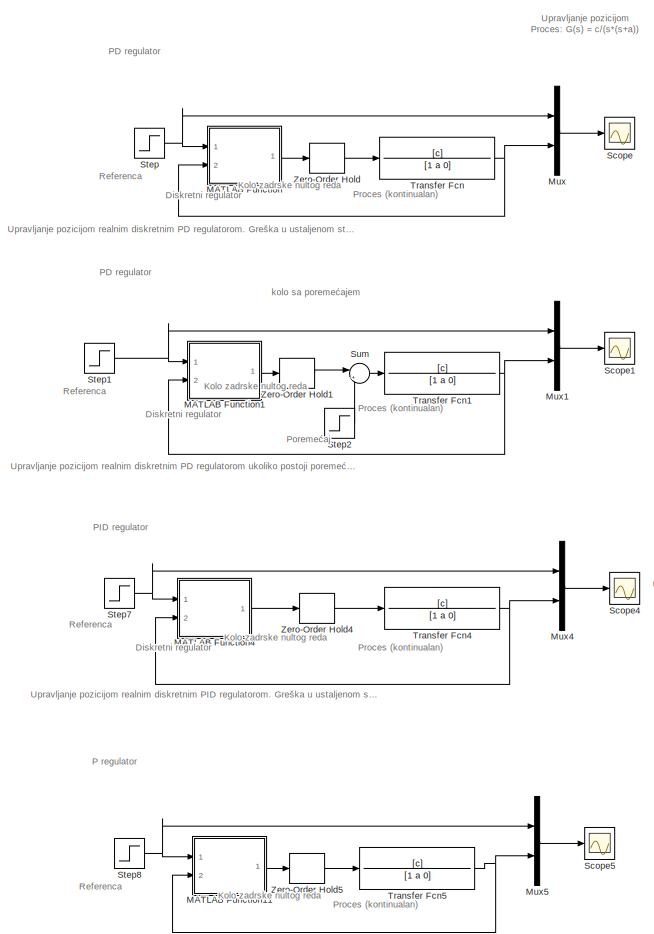
[diagram: root canvas - part 1/2, left side, full height]
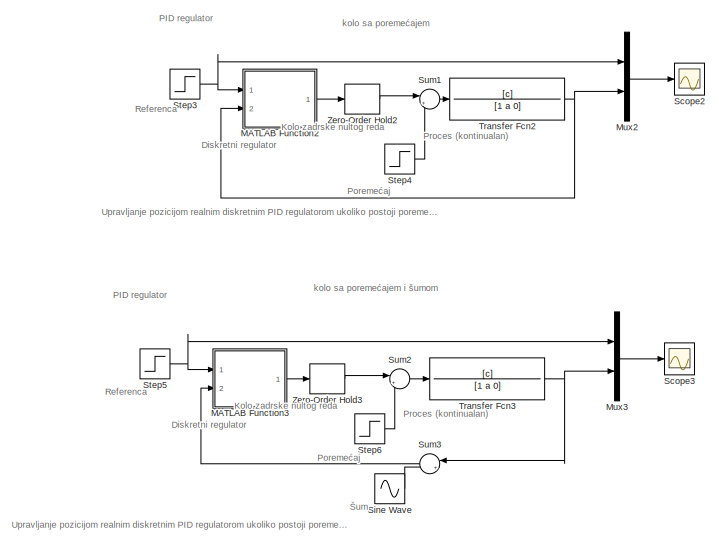
[diagram: root canvas - part 2/2, middle right region]
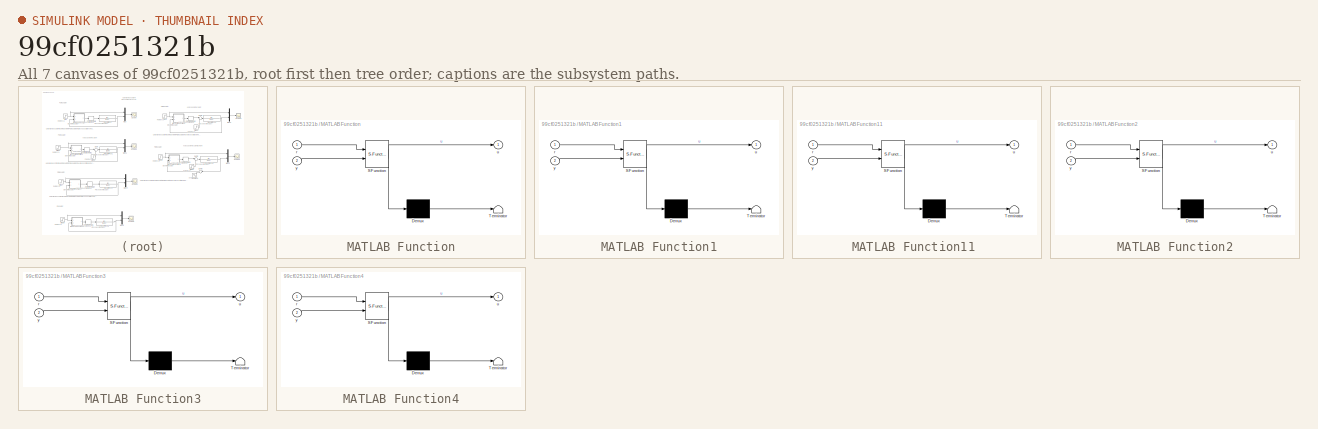
[diagram: thumbnail index - all 7 canvases of the model, root first then tree order]
MODEL slx_99cf0251321b
KIND model
CONFIG AbsTol = auto
CONFIG EnableMultiTasking = off
CONFIG FixedStep = auto
CONFIG MaxStep = auto
CONFIG MinStep = auto
CONFIG RelTol = 1e-3
CONFIG SampleTimeConstraint = Unconstrained
CONFIG Solver = ode3
CONFIG SolverName = ode3
CONFIG StartTime = 0.0
CONFIG StopTime = 10
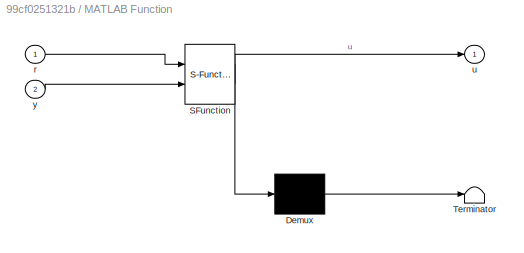
BLOCK [SubSystem] MATLAB Function
  ErrorFcn = Stateflow.Translate.translate
  PermitHierarchicalResolution = ExplicitOnly
  Ports = [2, 1]
  RequestExecContextInheritance = off
  SFBlockType = MATLAB Function
  TreatAsAtomicUnit = on
BLOCK [Demux] MATLAB Function/ Demux 
  Outputs = 1
  Ports = [1, 1]
BLOCK [S-Function] MATLAB Function/ SFunction 
  EnableBusSupport = on
  FunctionName = sf_sfun
  Parameters = K3,N,T,Td3
  PortCounts = [2 2]
  Ports = [2, 2]
  SFcnIsStateOwnerBlock = off
  SFunctionDeploymentMode = off
  Tag = Stateflow S-Function upravljanjePozicijom2014a 2
BLOCK [Terminator] MATLAB Function/ Terminator 
BLOCK [Inport] MATLAB Function/r
  IconDisplay = Port number
BLOCK [Outport] MATLAB Function/u
  IconDisplay = Port number
BLOCK [Inport] MATLAB Function/y
  IconDisplay = Port number
  Port = 2
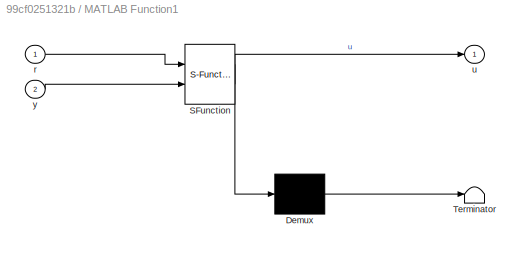
BLOCK [SubSystem] MATLAB Function1
  ErrorFcn = Stateflow.Translate.translate
  PermitHierarchicalResolution = ExplicitOnly
  Ports = [2, 1]
  RequestExecContextInheritance = off
  SFBlockType = MATLAB Function
  TreatAsAtomicUnit = on
BLOCK [Demux] MATLAB Function1/ Demux 
  Outputs = 1
  Ports = [1, 1]
BLOCK [S-Function] MATLAB Function1/ SFunction 
  EnableBusSupport = on
  FunctionName = sf_sfun
  Parameters = K3,N,T,Td3
  PortCounts = [2 2]
  Ports = [2, 2]
  SFcnIsStateOwnerBlock = off
  SFunctionDeploymentMode = off
  Tag = Stateflow S-Function upravljanjePozicijom2014a 1
BLOCK [Terminator] MATLAB Function1/ Terminator 
BLOCK [Inport] MATLAB Function1/r
  IconDisplay = Port number
BLOCK [Outport] MATLAB Function1/u
  IconDisplay = Port number
BLOCK [Inport] MATLAB Function1/y
  IconDisplay = Port number
  Port = 2
BLOCK [SubSystem] MATLAB Function11 
  ErrorFcn = Stateflow.Translate.translate
  PermitHierarchicalResolution = ExplicitOnly
  Ports = [2, 1]
  RequestExecContextInheritance = off
  SFBlockType = MATLAB Function
  TreatAsAtomicUnit = on
BLOCK [Demux] MATLAB Function11 / Demux 
  Outputs = 1
  Ports = [1, 1]
BLOCK [S-Function] MATLAB Function11 / SFunction 
  EnableBusSupport = on
  FunctionName = sf_sfun
  Parameters = K,b
  PortCounts = [2 2]
  Ports = [2, 2]
  SFcnIsStateOwnerBlock = off
  SFunctionDeploymentMode = off
  Tag = Stateflow S-Function upravljanjePozicijom2014a 6
BLOCK [Terminator] MATLAB Function11 / Terminator 
BLOCK [Inport] MATLAB Function11 /r
  IconDisplay = Port number
BLOCK [Outport] MATLAB Function11 /u
  IconDisplay = Port number
BLOCK [Inport] MATLAB Function11 /y
  IconDisplay = Port number
  Port = 2
BLOCK [SubSystem] MATLAB Function2
  ErrorFcn = Stateflow.Translate.translate
  PermitHierarchicalResolution = ExplicitOnly
  Ports = [2, 1]
  RequestExecContextInheritance = off
  SFBlockType = MATLAB Function
  TreatAsAtomicUnit = on
BLOCK [Demux] MATLAB Function2/ Demux 
  Outputs = 1
  Ports = [1, 1]
BLOCK [S-Function] MATLAB Function2/ SFunction 
  EnableBusSupport = on
  FunctionName = sf_sfun
  Parameters = K4,N,T,Td4,Ti4,b
  PortCounts = [2 2]
  Ports = [2, 2]
  SFcnIsStateOwnerBlock = off
  SFunctionDeploymentMode = off
  Tag = Stateflow S-Function upravljanjePozicijom2014a 3
BLOCK [Terminator] MATLAB Function2/ Terminator 
BLOCK [Inport] MATLAB Function2/r
  IconDisplay = Port number
BLOCK [Outport] MATLAB Function2/u
  IconDisplay = Port number
BLOCK [Inport] MATLAB Function2/y
  IconDisplay = Port number
  Port = 2
BLOCK [SubSystem] MATLAB Function3
  ErrorFcn = Stateflow.Translate.translate
  PermitHierarchicalResolution = ExplicitOnly
  Ports = [2, 1]
  RequestExecContextInheritance = off
  SFBlockType = MATLAB Function
  TreatAsAtomicUnit = on
BLOCK [Demux] MATLAB Function3/ Demux 
  Outputs = 1
  Ports = [1, 1]
BLOCK [S-Function] MATLAB Function3/ SFunction 
  EnableBusSupport = on
  FunctionName = sf_sfun
  Parameters = K4,N,T,Td4,Ti4,b
  PortCounts = [2 2]
  Ports = [2, 2]
  SFcnIsStateOwnerBlock = off
  SFunctionDeploymentMode = off
  Tag = Stateflow S-Function upravljanjePozicijom2014a 4
BLOCK [Terminator] MATLAB Function3/ Terminator 
BLOCK [Inport] MATLAB Function3/r
  IconDisplay = Port number
BLOCK [Outport] MATLAB Function3/u
  IconDisplay = Port number
BLOCK [Inport] MATLAB Function3/y
  IconDisplay = Port number
  Port = 2
BLOCK [SubSystem] MATLAB Function4
  ErrorFcn = Stateflow.Translate.translate
  PermitHierarchicalResolution = ExplicitOnly
  Ports = [2, 1]
  RequestExecContextInheritance = off
  SFBlockType = MATLAB Function
  TreatAsAtomicUnit = on
BLOCK [Demux] MATLAB Function4/ Demux 
  Outputs = 1
  Ports = [1, 1]
BLOCK [S-Function] MATLAB Function4/ SFunction 
  EnableBusSupport = on
  FunctionName = sf_sfun
  Parameters = K4,N,T,Td4,Ti4,b
  PortCounts = [2 2]
  Ports = [2, 2]
  SFcnIsStateOwnerBlock = off
  SFunctionDeploymentMode = off
  Tag = Stateflow S-Function upravljanjePozicijom2014a 5
BLOCK [Terminator] MATLAB Function4/ Terminator 
BLOCK [Inport] MATLAB Function4/r
  IconDisplay = Port number
BLOCK [Outport] MATLAB Function4/u
  IconDisplay = Port number
BLOCK [Inport] MATLAB Function4/y
  IconDisplay = Port number
  Port = 2
BLOCK [Mux] Mux
  DisplayOption = bar
  Inputs = 2
  Ports = [2, 1]
BLOCK [Mux] Mux1
  DisplayOption = bar
  Inputs = 2
  Ports = [2, 1]
BLOCK [Mux] Mux2
  DisplayOption = bar
  Inputs = 2
  Ports = [2, 1]
BLOCK [Mux] Mux3
  DisplayOption = bar
  Inputs = 2
  Ports = [2, 1]
BLOCK [Mux] Mux4
  DisplayOption = bar
  Inputs = 2
  Ports = [2, 1]
BLOCK [Mux] Mux5
  DisplayOption = bar
  Inputs = 2
  Ports = [2, 1]
BLOCK [Scope] Scope
  Floating = off
  NumInputPorts = 1
  Ports = [1]
  ScopeSpecificationString = Simulink.scopes.TimeScopeBlockCfg('CurrentConfiguration', extmgr.ConfigurationSet(extmgr.Configuration('Core','General UI',true,'FigureColor',[0.156862745098039 0.156862745098039 0.156862745098039]),extmgr.Configuration('Core','Source UI',true),extmgr.Configuration('Sources','WiredSimulink',true,'DataLoggingSaveFormat','StructureWithTime','DataLoggingDecimation','1','DataLoggingDecimateData',true)...<+3125ch>
BLOCK [Scope] Scope1
  Floating = off
  NumInputPorts = 1
  Ports = [1]
  ScopeSpecificationString = Simulink.scopes.TimeScopeBlockCfg('CurrentConfiguration', extmgr.ConfigurationSet(extmgr.Configuration('Core','General UI',true,'FigureColor',[0.156862745098039 0.156862745098039 0.156862745098039]),extmgr.Configuration('Core','Source UI',true),extmgr.Configuration('Sources','WiredSimulink',true,'DataLoggingVariableName','ScopeData1','DataLoggingSaveFormat','StructureWithTime','DataLoggingDecimati...<+3172ch>
BLOCK [Scope] Scope2
  Floating = off
  NumInputPorts = 1
  Ports = [1]
  ScopeSpecificationString = Simulink.scopes.TimeScopeBlockCfg('CurrentConfiguration', extmgr.ConfigurationSet(extmgr.Configuration('Core','General UI',true,'FigureColor',[0.156862745098039 0.156862745098039 0.156862745098039]),extmgr.Configuration('Core','Source UI',true),extmgr.Configuration('Sources','WiredSimulink',true,'DataLoggingVariableName','ScopeData2','DataLoggingSaveFormat','StructureWithTime','DataLoggingDecimati...<+3137ch>
BLOCK [Scope] Scope3
  Floating = off
  NumInputPorts = 1
  Ports = [1]
  ScopeSpecificationString = Simulink.scopes.TimeScopeBlockCfg('CurrentConfiguration', extmgr.ConfigurationSet(extmgr.Configuration('Core','General UI',true,'FigureColor',[0.156862745098039 0.156862745098039 0.156862745098039]),extmgr.Configuration('Core','Source UI',true),extmgr.Configuration('Sources','WiredSimulink',true,'DataLoggingVariableName','ScopeData3','DataLoggingSaveFormat','StructureWithTime','DataLoggingDecimati...<+3138ch>
BLOCK [Scope] Scope4
  Floating = off
  NumInputPorts = 1
  Ports = [1]
  ScopeSpecificationString = Simulink.scopes.TimeScopeBlockCfg('CurrentConfiguration', extmgr.ConfigurationSet(extmgr.Configuration('Core','General UI',true,'FigureColor',[0.156862745098039 0.156862745098039 0.156862745098039]),extmgr.Configuration('Core','Source UI',true),extmgr.Configuration('Sources','WiredSimulink',true,'DataLoggingVariableName','ScopeData1','DataLoggingSaveFormat','StructureWithTime','DataLoggingDecimati...<+3135ch>
BLOCK [Scope] Scope5
  Floating = off
  NumInputPorts = 1
  Ports = [1]
  ScopeSpecificationString = Simulink.scopes.TimeScopeBlockCfg('CurrentConfiguration', extmgr.ConfigurationSet(extmgr.Configuration('Core','General UI',true,'FigureColor',[0.156862745098039 0.156862745098039 0.156862745098039]),extmgr.Configuration('Core','Source UI',true),extmgr.Configuration('Sources','WiredSimulink',true,'DataLoggingSaveFormat','StructureWithTime','DataLoggingDecimation','1','DataLoggingDecimateData',true,...<+3184ch>
BLOCK [Sin] Sine Wave
  Amplitude = 0.05
  Frequency = 50000
  Ports = [0, 1]
  SampleTime = 0
BLOCK [Step] Step
  After = 2
  SampleTime = T
BLOCK [Step] Step1
  After = 2
  SampleTime = T
BLOCK [Step] Step2
  After = 0.2
  SampleTime = 0
  Time = 25
BLOCK [Step] Step3
  After = 2
  SampleTime = T
BLOCK [Step] Step4
  After = 0.2
  SampleTime = 0
  Time = 50
BLOCK [Step] Step5
  After = 2
  SampleTime = T
BLOCK [Step] Step6
  After = 0.2
  SampleTime = 0
  Time = 50
BLOCK [Step] Step7
  After = 2
  SampleTime = T
BLOCK [Step] Step8
  After = 2
  SampleTime = T
BLOCK [Sum] Sum
  IconShape = round
  InputSameDT = off
  Inputs = |++
  OutDataTypeStr = Inherit: Inherit via internal rule
  Ports = [2, 1]
  SaturateOnIntegerOverflow = off
BLOCK [Sum] Sum1
  IconShape = round
  InputSameDT = off
  Inputs = |++
  OutDataTypeStr = Inherit: Inherit via internal rule
  Ports = [2, 1]
  SaturateOnIntegerOverflow = off
BLOCK [Sum] Sum2
  IconShape = round
  InputSameDT = off
  Inputs = |++
  OutDataTypeStr = Inherit: Inherit via internal rule
  Ports = [2, 1]
  SaturateOnIntegerOverflow = off
BLOCK [Sum] Sum3
  IconShape = round
  InputSameDT = off
  Inputs = |++
  OutDataTypeStr = Inherit: Inherit via internal rule
  Ports = [2, 1]
  SaturateOnIntegerOverflow = off
BLOCK [TransferFcn] Transfer Fcn
  Denominator = [1 a 0]
  Numerator = [c]
BLOCK [TransferFcn] Transfer Fcn1
  Denominator = [1 a 0]
  Numerator = [c]
BLOCK [TransferFcn] Transfer Fcn2
  Denominator = [1 a 0]
  Numerator = [c]
BLOCK [TransferFcn] Transfer Fcn3
  Denominator = [1 a 0]
  Numerator = [c]
BLOCK [TransferFcn] Transfer Fcn4
  Denominator = [1 a 0]
  Numerator = [c]
BLOCK [TransferFcn] Transfer Fcn5
  Denominator = [1 a 0]
  Numerator = [c]
BLOCK [ZeroOrderHold] Zero-Order Hold
  SampleTime = T
BLOCK [ZeroOrderHold] Zero-Order Hold1
  SampleTime = T
BLOCK [ZeroOrderHold] Zero-Order Hold2
  SampleTime = T
BLOCK [ZeroOrderHold] Zero-Order Hold3
  SampleTime = T
BLOCK [ZeroOrderHold] Zero-Order Hold4
  SampleTime = T
BLOCK [ZeroOrderHold] Zero-Order Hold5
  SampleTime = T
ANNOTATION (root): Diskretni regulator
ANNOTATION (root): Kolo zadrske nultog reda
ANNOTATION (root): Poremećaj
ANNOTATION (root): Proces (kontinualan)
ANNOTATION (root): Referenca
ANNOTATION (root): Upravljanje pozicijom realnim diskretnim PD regulatorom ukoliko postoji poremećaj u sistemu. Greška u ustaljenom stanju postoji zbog čega uvodimo I dejstvo.
ANNOTATION (root): Upravljanje pozicijom realnim diskretnim PD regulatorom. Greška u ustaljenom stanju je nula.
ANNOTATION (root): Upravljanje pozicijom realnim diskretnim PID regulatorom ukoliko postoji poremećaj i šum u sistemu.
ANNOTATION (root): Upravljanje pozicijom realnim diskretnim PID regulatorom ukoliko postoji poremećaj u sistemu. Greška u ustaljenom stanju je nula.
ANNOTATION (root): Upravljanje pozicijom realnim diskretnim PID regulatorom. Greška u ustaljenom stanju je nula.
ANNOTATION (root): Šum
ANNOTATION (root): P regulator
ANNOTATION (root): PD regulator
ANNOTATION (root): PID regulator
ANNOTATION (root): Upravljanje pozicijom Proces: G(s) = c/(s*(s+a))
ANNOTATION (root): kolo sa poremećajem i šumom
ANNOTATION (root): kolo sa poremećajem
LINE MATLAB Function11 :1 -> Zero-Order Hold5:1
LINE MATLAB Function1:1 -> Zero-Order Hold1:1
LINE MATLAB Function2:1 -> Zero-Order Hold2:1
LINE MATLAB Function3:1 -> Zero-Order Hold3:1
LINE MATLAB Function4:1 -> Zero-Order Hold4:1
LINE MATLAB Function:1 -> Zero-Order Hold:1
LINE Mux1:1 -> Scope1:1
LINE Mux2:1 -> Scope2:1
LINE Mux3:1 -> Scope3:1
LINE Mux4:1 -> Scope4:1
LINE Mux5:1 -> Scope5:1
LINE Mux:1 -> Scope:1
LINE Sine Wave:1 -> Sum3:2
NET Step1:1 -> MATLAB Function1:1, Mux1:1
LINE Step2:1 -> Sum:2
NET Step3:1 -> MATLAB Function2:1, Mux2:1
LINE Step4:1 -> Sum1:2
NET Step5:1 -> MATLAB Function3:1, Mux3:1
LINE Step6:1 -> Sum2:2
NET Step7:1 -> MATLAB Function4:1, Mux4:1
NET Step8:1 -> MATLAB Function11 :1, Mux5:1
NET Step:1 -> MATLAB Function:1, Mux:1
LINE Sum1:1 -> Transfer Fcn2:1
LINE Sum2:1 -> Transfer Fcn3:1
LINE Sum3:1 -> MATLAB Function3:2
LINE Sum:1 -> Transfer Fcn1:1
NET Transfer Fcn1:1 -> MATLAB Function1:2, Mux1:2
NET Transfer Fcn2:1 -> MATLAB Function2:2, Mux2:2
NET Transfer Fcn3:1 -> Mux3:2, Sum3:1
NET Transfer Fcn4:1 -> MATLAB Function4:2, Mux4:2
NET Transfer Fcn5:1 -> MATLAB Function11 :2, Mux5:2
NET Transfer Fcn:1 -> MATLAB Function:2, Mux:2
LINE Zero-Order Hold1:1 -> Sum:1
LINE Zero-Order Hold2:1 -> Sum1:1
LINE Zero-Order Hold3:1 -> Sum2:1
LINE Zero-Order Hold4:1 -> Transfer Fcn4:1
LINE Zero-Order Hold5:1 -> Transfer Fcn5:1
LINE Zero-Order Hold:1 -> Transfer Fcn:1
note: NET lines group one-source signal fan-out (src -> all destinations, sorted); 1:1 wires keep LINE
CHART MATLAB Function1 states=1 transitions=1
  STATE_LABEL 'eML_blk_kernel()'
  STATE_LABEL 'SCRIPT:\nfunction u = fcn(r, y, K3, N, Td3, T)\n\n% implementacija realnog diskretnog PD regulatora\n% Ulazni parametri su: r - referenca, y - izlaz iz sistema (procesa), K3 -\n% proporcionalno pojacanje, T - perioda odabiranja, Td3 - vremenska konstanta diferenciranja, \n% N - vremenska konstanta niskopropusnog filtra, b - tezinski faktor.\n% Izlazni parametar je upravljanje: u = P + D.\n% D dejstvo je d...<+731ch>'
CHART MATLAB Function states=1 transitions=1
  STATE_LABEL 'eML_blk_kernel()'
  STATE_LABEL 'SCRIPT:\nfunction u = fcn(r, y, K3, N, Td3, T)\n\n% implementacija realnog diskretnog PD regulatora\n% Ulazni parametri su: r - referenca, y - izlaz iz sistema (procesa), K3 -\n% proporcionalno pojacanje, T - perioda odabiranja, Td3 - vremenska konstanta diferenciranja, \n% N - vremenska konstanta niskopropusnog filtra, b - tezinski faktor.\n% Izlazni parametar je upravljanje: u = P + D.\n% D dejstvo je d...<+731ch>'
CHART MATLAB Function2 states=1 transitions=1
  STATE_LABEL 'eML_blk_kernel()'
  STATE_LABEL 'SCRIPT:\nfunction u = fcn(r, y, K4, N, Td4, T, Ti4, b)\n\n% implementacija realnog diskretnog PID regulatora\n% Ulazni parametri su: r - referenca, y - izlaz iz sistema (procesa), K4 -\n% proporcionalno pojacanje, T - perioda odabiranja, Td4 - vremenska konstanta diferenciranja, \n% N - vremenska konstanta niskopropusnog filtra, b - tezinski faktor, Ti4 - vremenska\n% konstantna integraljenja.\n% Izlazni ...<+1089ch>'  <repeated x3 — deduplicated; at blocks: MATLAB Function2, MATLAB Function3, MATLAB Function4>
CHART MATLAB Function3 states=1 transitions=1
  STATE_LABEL 'eML_blk_kernel()'
CHART MATLAB Function4 states=1 transitions=1
  STATE_LABEL 'eML_blk_kernel()'
CHART MATLAB Function11
 states=1 transitions=1
  STATE_LABEL 'eML_blk_kernel()'
  STATE_LABEL 'SCRIPT:\nfunction u = fcn(r, y, K,b)\n\nu = K*(b*r-y);\n\nend\n\n\n'
